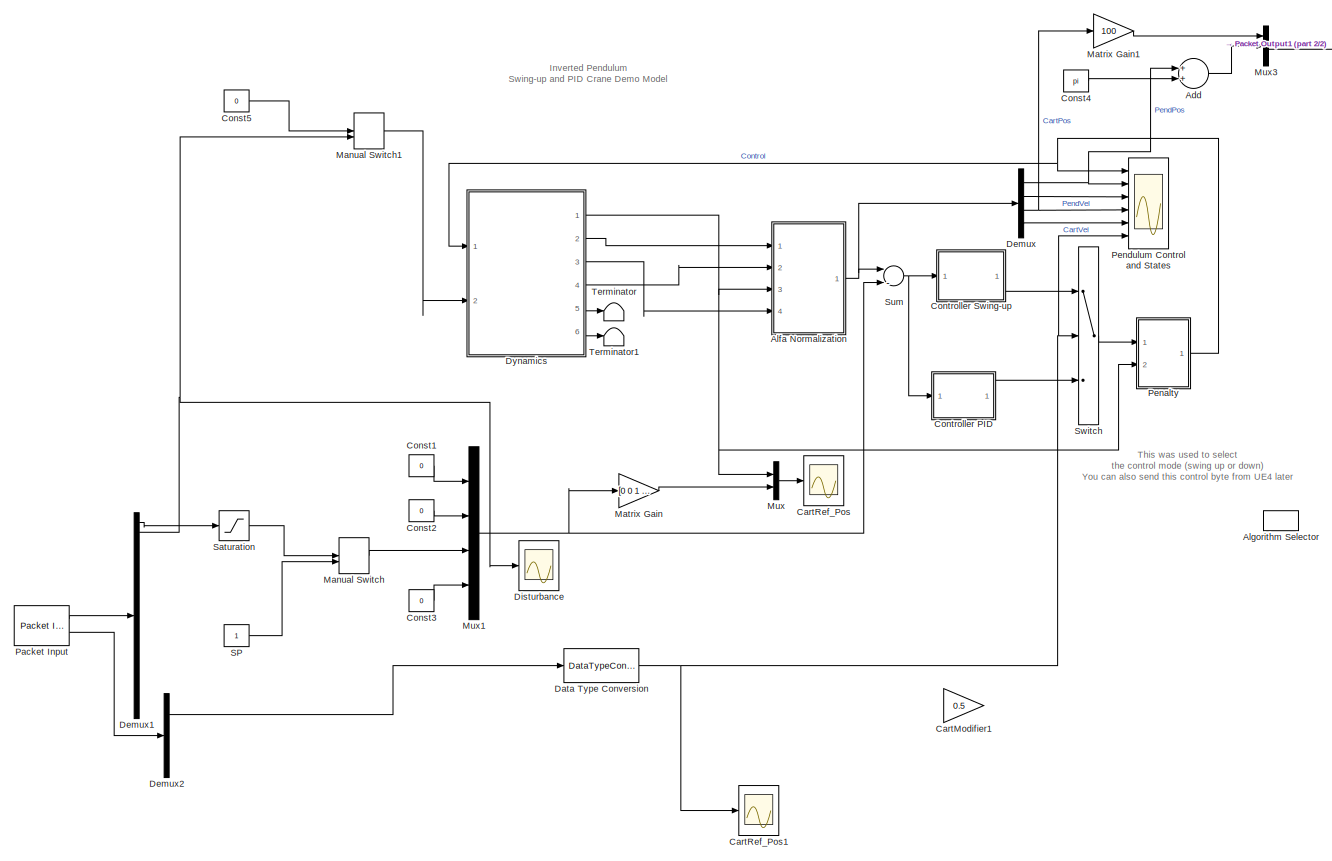
[diagram: root canvas - part 1/2, most of the canvas]
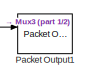
[diagram: root canvas - part 2/2, top right region]
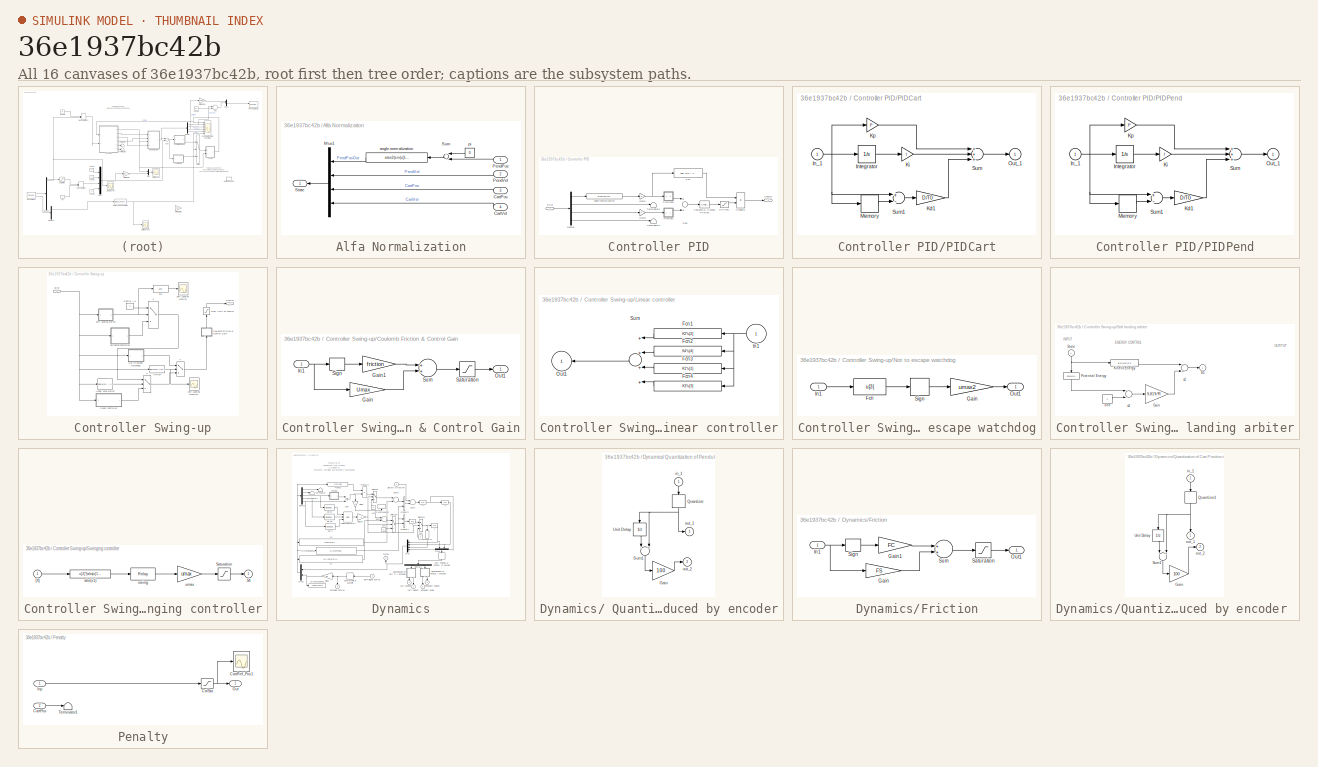
[diagram: thumbnail index - all 16 canvases of the model, root first then tree order]
MODEL slx_36e1937bc42b
KIND model
CONFIG AbsTol = 1e-6
CONFIG EnableMultiTasking = off
CONFIG FixedStep = 0.01
CONFIG MaxStep = auto
CONFIG MinStep = auto
CONFIG RelTol = 1e-3
CONFIG SampleTimeConstraint = Unconstrained
CONFIG Solver = ode5
CONFIG SolverName = ode5
CONFIG StartTime = 0.0
CONFIG StopTime = inf
BLOCK [Sum] Add
  InputSameDT = off
  OutDataTypeStr = Inherit: Inherit via internal rule
  Ports = [2, 1]
  SaturateOnIntegerOverflow = off
BLOCK [SubSystem] Alfa Normalization
  Ports = [4, 1]
  RequestExecContextInheritance = off
BLOCK [Inport] Alfa Normalization/CartPos
  IconDisplay = Port number
  Port = 3
BLOCK [Inport] Alfa Normalization/CartVel
  IconDisplay = Port number
  Port = 4
BLOCK [Mux] Alfa Normalization/Mux1
  Ports = [4, 1]
BLOCK [Inport] Alfa Normalization/PendPos
  IconDisplay = Port number
BLOCK [Inport] Alfa Normalization/PendVel
  IconDisplay = Port number
  Port = 2
BLOCK [Outport] Alfa Normalization/State
  IconDisplay = Port number
  InitialOutput = 0
BLOCK [Sum] Alfa Normalization/Sum
  Ports = [2, 1]
BLOCK [Fcn] Alfa Normalization/angle normalization
  Expr = atan2(sin(u[1]),cos(u[1]))
BLOCK [Constant] Alfa Normalization/pi
  Value = 0
BLOCK [DiscretePulseGenerator] Algorithm Selector
  Period = 30
  Ports = [0, 1]
  PulseType = Time based
  PulseWidth = 70
BLOCK [Gain] CartModifier1
  Gain = 0.5
  Multiplication = Matrix(K*u)
BLOCK [Scope] CartRef_Pos
  ExtModeLoggingTrig = on
  ExtModeUploadOption = log
  Floating = off
  NumInputPorts = 1
  Ports = [1]
  ScopeSpecificationString = Simulink.scopes.TimeScopeBlockCfg('CurrentConfiguration', extmgr.ConfigurationSet(extmgr.Configuration('Core','General UI',true),extmgr.Configuration('Core','Source UI',true),extmgr.Configuration('Sources','WiredSimulink',true,'DataLogging',true,'DataLoggingVariableName','Cart_refpos','DataLoggingSaveFormat','StructureWithTime','DataLoggingMaxPoints','50000','DataLoggingLimitDataPoints',true,'Data...<+1828ch>
BLOCK [Scope] CartRef_Pos1
  Floating = off
  NumInputPorts = 1
  Ports = [1]
  ScopeSpecificationString = Simulink.scopes.TimeScopeBlockCfg('CurrentConfiguration', extmgr.ConfigurationSet(extmgr.Configuration('Core','General UI',true),extmgr.Configuration('Core','Source UI',true),extmgr.Configuration('Sources','WiredSimulink',true,'DataLogging',true,'DataLoggingVariableName','ScopeData155','DataLoggingSaveFormat','StructureWithTime','DataLoggingMaxPoints','50000','DataLoggingLimitDataPoints',true,'Dat...<+1825ch>
BLOCK [Constant] Const1
  Value = 0
BLOCK [Constant] Const2
  Value = 0
BLOCK [Constant] Const3
  Value = 0
BLOCK [Constant] Const4
  Value = pi
BLOCK [Constant] Const5
  Value = 0
BLOCK [SubSystem] Controller PID
  Ports = [1, 1]
  RequestExecContextInheritance = off
BLOCK [Outport] Controller PID/Control
  IconDisplay = Port number
  InitialOutput = 0
BLOCK [Reference] Controller PID/Coulomb & Viscous Friction  REF=simulink/Discontinuities/Coulomb &
Viscous Friction
  Ports = [1, 1]
  SourceBlock = simulink/Discontinuities/Coulomb &\nViscous Friction
  SourceProductBaseCode = SL
  SourceProductName = Simulink
  SourceType = Coulombic and Viscous Friction
BLOCK [Saturate] Controller PID/CtrlSat1
  InputPortMap = u0
  LowerLimit = -Umax
  Ports = [1, 1]
  UpperLimit = Umax
BLOCK [Demux] Controller PID/Demux
  Ports = [1, 4]
BLOCK [Inport] Controller PID/Error
  IconDisplay = Port number
BLOCK [Fcn] Controller PID/Fcn
  Expr = abs( u[1] ) < zone
BLOCK [Gain] Controller PID/Gain1
BLOCK [Gain] Controller PID/Gain3
BLOCK [SubSystem] Controller PID/PIDCart
  Ports = [1, 1]
  RequestExecContextInheritance = off
BLOCK [Inport] Controller PID/PIDCart/In_1
  IconDisplay = Port number
BLOCK [Integrator] Controller PID/PIDCart/Integrator
  LimitOutput = on
  LowerSaturationLimit = -1
  Ports = [1, 1]
  UpperSaturationLimit = 1
BLOCK [Gain] Controller PID/PIDCart/Kd1
  Gain = D/T0
BLOCK [Gain] Controller PID/PIDCart/Ki
  Gain = I
BLOCK [Gain] Controller PID/PIDCart/Kp
  Gain = P
BLOCK [Memory] Controller PID/PIDCart/Memory
BLOCK [Outport] Controller PID/PIDCart/Out_1
  IconDisplay = Port number
  InitialOutput = 0
BLOCK [Sum] Controller PID/PIDCart/Sum
  Inputs = +++
  Ports = [3, 1]
BLOCK [Sum] Controller PID/PIDCart/Sum1
  Inputs = +-
  Ports = [2, 1]
BLOCK [SubSystem] Controller PID/PIDPend
  Ports = [1, 1]
  RequestExecContextInheritance = off
BLOCK [Inport] Controller PID/PIDPend/In_1
  IconDisplay = Port number
BLOCK [Integrator] Controller PID/PIDPend/Integrator
  LimitOutput = on
  LowerSaturationLimit = -1
  Ports = [1, 1]
  UpperSaturationLimit = 1
BLOCK [Gain] Controller PID/PIDPend/Kd1
  Gain = D/T0
BLOCK [Gain] Controller PID/PIDPend/Ki
  Gain = I
BLOCK [Gain] Controller PID/PIDPend/Kp
  Gain = P
BLOCK [Memory] Controller PID/PIDPend/Memory
BLOCK [Outport] Controller PID/PIDPend/Out_1
  IconDisplay = Port number
  InitialOutput = 0
BLOCK [Sum] Controller PID/PIDPend/Sum
  Inputs = +++
  Ports = [3, 1]
BLOCK [Sum] Controller PID/PIDPend/Sum1
  Inputs = +-
  Ports = [2, 1]
BLOCK [Product] Controller PID/Product1
  Ports = [2, 1]
BLOCK [Sum] Controller PID/Sum
  Ports = [2, 1]
BLOCK [Terminator] Controller PID/Terminator1
BLOCK [Terminator] Controller PID/Terminator2
BLOCK [Fcn] Controller PID/angle normalization
  Expr = atan2(sin(u+pi),cos(u+pi))
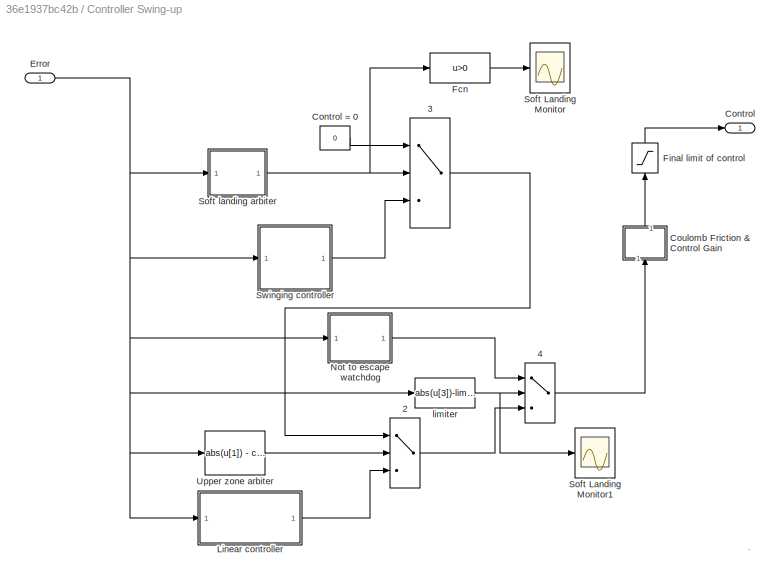
BLOCK [SubSystem] Controller Swing-up
  Ports = [1, 1]
  RequestExecContextInheritance = off
BLOCK [Switch] Controller Swing-up/2
BLOCK [Switch] Controller Swing-up/3
BLOCK [Switch] Controller Swing-up/4
BLOCK [Outport] Controller Swing-up/Control
  IconDisplay = Port number
  InitialOutput = 0
BLOCK [Constant] Controller Swing-up/Control = 0
  Value = 0
BLOCK [SubSystem] Controller Swing-up/Coulomb Friction & Control Gain
  Ports = [1, 1]
  RequestExecContextInheritance = off
BLOCK [Gain] Controller Swing-up/Coulomb Friction & Control Gain/Gain
  Gain = Umax
BLOCK [Gain] Controller Swing-up/Coulomb Friction & Control Gain/Gain1
  Gain = friction
BLOCK [Inport] Controller Swing-up/Coulomb Friction & Control Gain/In1
  IconDisplay = Port number
BLOCK [Outport] Controller Swing-up/Coulomb Friction & Control Gain/Out1
  IconDisplay = Port number
  InitialOutput = 0
BLOCK [Saturate] Controller Swing-up/Coulomb Friction & Control Gain/Saturation
  InputPortMap = u0
  LowerLimit = -1
  Ports = [1, 1]
  UpperLimit = 1
BLOCK [Signum] Controller Swing-up/Coulomb Friction & Control Gain/Sign
BLOCK [Sum] Controller Swing-up/Coulomb Friction & Control Gain/Sum
  Ports = [2, 1]
BLOCK [Inport] Controller Swing-up/Error
  IconDisplay = Port number
BLOCK [Fcn] Controller Swing-up/Fcn
  Expr = u>0
BLOCK [Saturate] Controller Swing-up/Final limit of control
  InputPortMap = u0
  LowerLimit = -0.2
  Ports = [1, 1]
  UpperLimit = 0.2
BLOCK [SubSystem] Controller Swing-up/Linear controller
  Ports = [1, 1]
  RequestExecContextInheritance = off
BLOCK [Fcn] Controller Swing-up/Linear controller/Fcn1
  Expr = K2*u[2]
BLOCK [Fcn] Controller Swing-up/Linear controller/Fcn2
  Expr = K4*u[4]
BLOCK [Fcn] Controller Swing-up/Linear controller/Fcn3
  Expr = K1*u[1]
BLOCK [Fcn] Controller Swing-up/Linear controller/Fcn4
  Expr = K3*u[3]
BLOCK [Inport] Controller Swing-up/Linear controller/In1
  IconDisplay = Port number
BLOCK [Outport] Controller Swing-up/Linear controller/Out1
  IconDisplay = Port number
  InitialOutput = 0
BLOCK [Sum] Controller Swing-up/Linear controller/Sum
  Inputs = ++++
  Ports = [4, 1]
BLOCK [SubSystem] Controller Swing-up/Not to escape watchdog
  Ports = [1, 1]
  RequestExecContextInheritance = off
BLOCK [Fcn] Controller Swing-up/Not to escape watchdog/Fcn
  Expr = u[3]
BLOCK [Gain] Controller Swing-up/Not to escape watchdog/Gain
  Gain = umax2
BLOCK [Inport] Controller Swing-up/Not to escape watchdog/In1
  IconDisplay = Port number
BLOCK [Outport] Controller Swing-up/Not to escape watchdog/Out1
  IconDisplay = Port number
  InitialOutput = 0
BLOCK [Signum] Controller Swing-up/Not to escape watchdog/Sign
BLOCK [Scope] Controller Swing-up/Soft Landing Monitor
  ExtModeLoggingTrig = on
  ExtModeUploadOption = log
  Floating = off
  NumInputPorts = 1
  Ports = [1]
  ScopeSpecificationString = C++SS(StrPVP('Location','[521, 73, 1019, 438]'),StrPVP('Open','off'),StrPVP('ZoomMode','xonly'),MxPVP('AxesTitles',53,'struct(''axes1'',''%<SignalLabel>'')'),StrPVP('ShowLegends','off'),StrPVP('TimeRange','60'),StrPVP('YMin','0'),StrPVP('YMax','1'),StrPVP('SaveToWorkspace','on'),StrPVP('DataFormat','StructureWithTime'),StrPVP('MaxDataPoints','50000'),StrPVP('BlockParamSampleTime','0'),StrPVP('Limi...<+82ch>
BLOCK [Scope] Controller Swing-up/Soft Landing Monitor1
  ExtModeLoggingTrig = on
  ExtModeUploadOption = log
  Floating = off
  NumInputPorts = 1
  Ports = [1]
  ScopeSpecificationString = C++SS(StrPVP('Location','[675, 376, 1034, 652]'),StrPVP('Open','off'),StrPVP('ZoomMode','xonly'),MxPVP('AxesTitles',53,'struct(''axes1'',''%<SignalLabel>'')'),StrPVP('ShowLegends','off'),StrPVP('TimeRange','60'),StrPVP('YMin','0'),StrPVP('YMax','1'),StrPVP('SaveToWorkspace','on'),StrPVP('SaveName','ScopeData1'),StrPVP('DataFormat','StructureWithTime'),StrPVP('MaxDataPoints','50000'),StrPVP('BlockP...<+115ch>
BLOCK [SubSystem] Controller Swing-up/Soft landing arbiter
  Ports = [1, 1]
  RequestExecContextInheritance = off
  ShowPortLabels = none
BLOCK [Gain] Controller Swing-up/Soft landing arbiter/Gain
  Gain = 9.81*k*R
BLOCK [Fcn] Controller Swing-up/Soft landing arbiter/Kinetic Energy
  Expr = u[2]*u[2]*0.5
BLOCK [Fcn] Controller Swing-up/Soft landing arbiter/Potential Energy
  Expr = cos(u[1])
BLOCK [Outport] Controller Swing-up/Soft landing arbiter/S5
  IconDisplay = Port number
  InitialOutput = 0
BLOCK [Inport] Controller Swing-up/Soft landing arbiter/State
  IconDisplay = Port number
BLOCK [Constant] Controller Swing-up/Soft landing arbiter/one 
BLOCK [Sum] Controller Swing-up/Soft landing arbiter/s2
  Ports = [2, 1]
BLOCK [Sum] Controller Swing-up/Soft landing arbiter/s3
  Inputs = +-
  Ports = [2, 1]
BLOCK [SubSystem] Controller Swing-up/Swinging controller
  Ports = [1, 1]
  RequestExecContextInheritance = off
  ShowPortLabels = none
BLOCK [Outport] Controller Swing-up/Swinging controller/S4
  IconDisplay = Port number
  InitialOutput = 0
BLOCK [Saturate] Controller Swing-up/Swinging controller/Saturation
  InputPortMap = u0
  LowerLimit = -umax
  Ports = [1, 1]
  UpperLimit = umax
BLOCK [Inport] Controller Swing-up/Swinging controller/[X]
  IconDisplay = Port number
BLOCK [Fcn] Controller Swing-up/Swinging controller/abs(x1)
  Expr = u[2]*(abs(u[1])-pi/2)
BLOCK [Relay] Controller Swing-up/Swinging controller/swing
  OffOutputValue = -1
BLOCK [Gain] Controller Swing-up/Swinging controller/umax
  Gain = umax
BLOCK [Fcn] Controller Swing-up/Upper zone arbiter
  Expr = abs(u[1]) - cone
BLOCK [Fcn] Controller Swing-up/limiter
  Expr = abs(u[3])-limit
BLOCK [DataTypeConversion] Data Type Conversion
  OutDataTypeStr = double
  RndMeth = Floor
  SaturateOnIntegerOverflow = off
BLOCK [Demux] Demux
  Ports = [1, 4]
BLOCK [Demux] Demux1
  DisplayOption = bar
  Outputs = 20
  Ports = [1, 20]
BLOCK [Demux] Demux2
  DisplayOption = bar
  Outputs = 3
  Ports = [1, 3]
BLOCK [Scope] Disturbance
  Floating = off
  NumInputPorts = 1
  Ports = [1]
  ScopeSpecificationString = Simulink.scopes.TimeScopeBlockCfg('CurrentConfiguration', extmgr.ConfigurationSet(extmgr.Configuration('Core','General UI',true),extmgr.Configuration('Core','Source UI',true),extmgr.Configuration('Sources','WiredSimulink',true,'DataLogging',true,'DataLoggingVariableName','ScopeData11','DataLoggingSaveFormat','StructureWithTime','DataLoggingMaxPoints','50000','DataLoggingLimitDataPoints',true,'Data...<+1824ch>
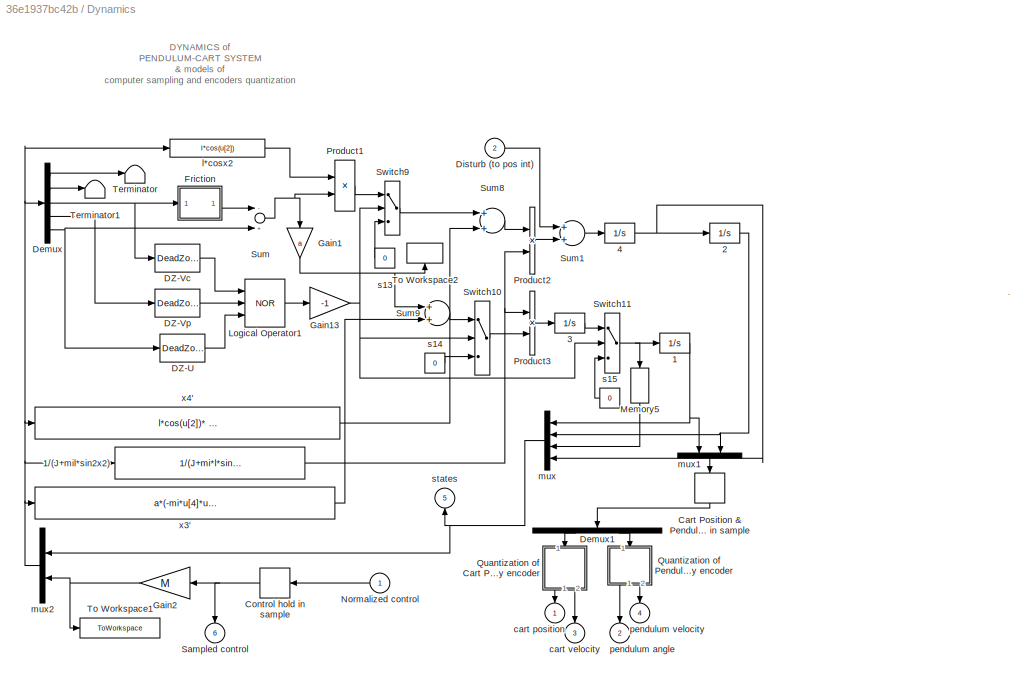
BLOCK [SubSystem] Dynamics
  Ports = [2, 6]
  RequestExecContextInheritance = off
  ShowPortLabels = none
BLOCK [SubSystem] Dynamics/ Quantization of Pendulum Angle introduced by encoder
  Ports = [1, 2]
  RequestExecContextInheritance = off
  ShowPortLabels = none
BLOCK [Gain] Dynamics/ Quantization of Pendulum Angle introduced by encoder/Gain
  Gain = 100
BLOCK [Quantizer] Dynamics/ Quantization of Pendulum Angle introduced by encoder/Quantizer
  QuantizationInterval = 0.001534
BLOCK [Sum] Dynamics/ Quantization of Pendulum Angle introduced by encoder/Sum1
  Inputs = -+
  Ports = [2, 1]
BLOCK [UnitDelay] Dynamics/ Quantization of Pendulum Angle introduced by encoder/Unit Delay
  InitialCondition = x_ini(2)
  SampleTime = 0.01
BLOCK [Inport] Dynamics/ Quantization of Pendulum Angle introduced by encoder/in_1
  IconDisplay = Port number
BLOCK [Outport] Dynamics/ Quantization of Pendulum Angle introduced by encoder/out_1
  IconDisplay = Port number
  InitialOutput = 0
BLOCK [Outport] Dynamics/ Quantization of Pendulum Angle introduced by encoder/out_2
  IconDisplay = Port number
  InitialOutput = 0
  Port = 2
BLOCK [Integrator] Dynamics/1
  InitialCondition = x_ini(1)
  LimitOutput = on
  LowerSaturationLimit = 0
  Ports = [1, 1]
  UpperSaturationLimit = 1.9
BLOCK [Fcn] Dynamics/1//(J+mil*sin2x2)
  Expr = 1/(J+mi*l*sin(u[2])*sin(u[2]))
BLOCK [Integrator] Dynamics/2
  InitialCondition = x_ini(2)
  Ports = [1, 1]
BLOCK [Integrator] Dynamics/3
  InitialCondition = x_ini(3)
  Ports = [1, 1]
BLOCK [Integrator] Dynamics/4
  InitialCondition = x_ini(4)
  Ports = [1, 1]
BLOCK [ZeroOrderHold] Dynamics/Cart Position & Pendulum Angle hold in sample
  SampleTime = 0.01
BLOCK [ZeroOrderHold] Dynamics/Control hold in sample
  SampleTime = 0.01
BLOCK [DeadZone] Dynamics/DZ-U
  LowerValue = -DZu
  UpperValue = DZu
BLOCK [DeadZone] Dynamics/DZ-Vc
  LowerValue = -DZcv
  UpperValue = DZcv
BLOCK [DeadZone] Dynamics/DZ-Vp
  LowerValue = -DZcp
  UpperValue = DZcp
BLOCK [Demux] Dynamics/Demux
  Outputs = 5
  Ports = [1, 5]
BLOCK [Demux] Dynamics/Demux1
  Outputs = 2
  Ports = [1, 2]
BLOCK [Inport] Dynamics/Disturb (to pos int)
  IconDisplay = Port number
  Port = 2
BLOCK [SubSystem] Dynamics/Friction
  Ports = [1, 1]
  RequestExecContextInheritance = off
BLOCK [Gain] Dynamics/Friction/Gain
  Gain = FS
BLOCK [Gain] Dynamics/Friction/Gain1
  Gain = FC
BLOCK [Inport] Dynamics/Friction/In1
  IconDisplay = Port number
BLOCK [Outport] Dynamics/Friction/Out1
  IconDisplay = Port number
  InitialOutput = 0
BLOCK [Saturate] Dynamics/Friction/Saturation
  InputPortMap = u0
  LowerLimit = -1
  Ports = [1, 1]
  UpperLimit = 1
BLOCK [Signum] Dynamics/Friction/Sign
BLOCK [Sum] Dynamics/Friction/Sum
  Ports = [2, 1]
BLOCK [Gain] Dynamics/Gain1
  Gain = a
BLOCK [Gain] Dynamics/Gain13
  Gain = -1
BLOCK [Gain] Dynamics/Gain2
  Gain = M
BLOCK [Logic] Dynamics/Logical Operator1
  Inputs = 3
  Operator = NOR
  Ports = [3, 1]
BLOCK [Memory] Dynamics/Memory5
BLOCK [Inport] Dynamics/Normalized control
  IconDisplay = Port number
BLOCK [Product] Dynamics/Product1
  Ports = [2, 1]
BLOCK [Product] Dynamics/Product2
  Ports = [2, 1]
BLOCK [Product] Dynamics/Product3
  Ports = [2, 1]
BLOCK [SubSystem] Dynamics/Quantization of Cart Position introduced by encoder 
  Ports = [1, 2]
  RequestExecContextInheritance = off
  ShowPortLabels = none
BLOCK [Gain] Dynamics/Quantization of Cart Position introduced by encoder /Gain
  Gain = 100
BLOCK [Quantizer] Dynamics/Quantization of Cart Position introduced by encoder /Quantizer1
  QuantizationInterval = 5.7053e-005
BLOCK [Sum] Dynamics/Quantization of Cart Position introduced by encoder /Sum1
  Inputs = -+
  Ports = [2, 1]
BLOCK [UnitDelay] Dynamics/Quantization of Cart Position introduced by encoder /Unit Delay
  InitialCondition = x_ini(1)
  SampleTime = 0.01
BLOCK [Inport] Dynamics/Quantization of Cart Position introduced by encoder /in_1
  IconDisplay = Port number
BLOCK [Outport] Dynamics/Quantization of Cart Position introduced by encoder /out_1
  IconDisplay = Port number
  InitialOutput = 0
BLOCK [Outport] Dynamics/Quantization of Cart Position introduced by encoder /out_2
  IconDisplay = Port number
  InitialOutput = 0
  Port = 2
BLOCK [Outport] Dynamics/Sampled control
  IconDisplay = Port number
  InitialOutput = 0
  Port = 6
BLOCK [Sum] Dynamics/Sum
  Inputs = -+
  Ports = [2, 1]
BLOCK [Sum] Dynamics/Sum1
  Ports = [2, 1]
BLOCK [Sum] Dynamics/Sum8
  Ports = [2, 1]
BLOCK [Sum] Dynamics/Sum9
  Ports = [2, 1]
BLOCK [Switch] Dynamics/Switch10
BLOCK [Switch] Dynamics/Switch11
BLOCK [Switch] Dynamics/Switch9
BLOCK [Terminator] Dynamics/Terminator
BLOCK [Terminator] Dynamics/Terminator1
BLOCK [ToWorkspace] Dynamics/To Workspace1
  MaxDataPoints = 100000
  Ports = [1]
  VariableName = Control_Newton
BLOCK [ToWorkspace] Dynamics/To Workspace2
  MaxDataPoints = 100000
  Ports = [1]
  VariableName = fric
BLOCK [Outport] Dynamics/cart position
  IconDisplay = Port number
  InitialOutput = 0
BLOCK [Outport] Dynamics/cart velocity
  IconDisplay = Port number
  InitialOutput = 0
  Port = 3
BLOCK [Fcn] Dynamics/l*cosx2
  Expr = l*cos(u[2])
BLOCK [Mux] Dynamics/mux
  Ports = [4, 1]
BLOCK [Mux] Dynamics/mux1
  Inputs = 2
  Ports = [2, 1]
BLOCK [Mux] Dynamics/mux2
  Inputs = [4 1]
  Ports = [2, 1]
BLOCK [Outport] Dynamics/pendulum angle
  IconDisplay = Port number
  InitialOutput = 0
  Port = 2
BLOCK [Outport] Dynamics/pendulum velocity
  IconDisplay = Port number
  InitialOutput = 0
  Port = 4
BLOCK [Constant] Dynamics/s13
  Value = 0
BLOCK [Constant] Dynamics/s14
  Value = 0
BLOCK [Constant] Dynamics/s15
  Value = 0
BLOCK [Outport] Dynamics/states
  IconDisplay = Port number
  InitialOutput = 0
  Port = 5
BLOCK [Fcn] Dynamics/x3'
  Expr = a*(-mi*u[4]*u[4]*sin(u[2]) )+l*cos(u[2])*(mi*g*sin(u[2])-fp*u[4])
BLOCK [Fcn] Dynamics/x4'
  Expr = l*cos(u[2])* (-mi*u[4]*u[4]*sin(u[2])) + mi*g*sin(u[2])-fp*u[4]
BLOCK [ManualSwitch] Manual Switch
BLOCK [ManualSwitch] Manual Switch1
  CurrentSetting = 0
BLOCK [Gain] Matrix Gain
  Gain = [0 0 1 0]
  Multiplication = Matrix(K*u)
BLOCK [Gain] Matrix Gain1
  Gain = 100
BLOCK [Mux] Mux
  DisplayOption = bar
  Inputs = 2
  Ports = [2, 1]
BLOCK [Mux] Mux1
  Ports = [4, 1]
BLOCK [Mux] Mux3
  DisplayOption = bar
  Inputs = 3
  Ports = [3, 1]
BLOCK [Reference] Packet Input  REF=sldrtlib/Packet Input
  AttributesFormatString = UDP Protocol [9977]
  Ports = [0, 2]
  SourceBlock = sldrtlib/Packet Input
  SourceProductBaseCode = WT
  SourceProductName = Simulink Desktop Real-Time
  SourceType = Simulink Desktop Real-Time Packet Input
BLOCK [Reference] Packet Output1  REF=sldrtlib/Packet Output
  AttributesFormatString = UDP Protocol [9999]
  Ports = [2, 1]
  SourceBlock = sldrtlib/Packet Output
  SourceProductBaseCode = WT
  SourceProductName = Simulink Desktop Real-Time
  SourceType = Simulink Desktop Real-Time Packet Output
BLOCK [SubSystem] Penalty
  Ports = [2, 1]
  RequestExecContextInheritance = off
BLOCK [Inport] Penalty/CartPos
  IconDisplay = Port number
  Port = 2
BLOCK [Scope] Penalty/CartRef_Pos1
  ExtModeLoggingTrig = on
  ExtModeUploadOption = log
  Floating = off
  NumInputPorts = 1
  Ports = [1]
  ScopeSpecificationString = C++SS(StrPVP('Location','[335, 46, 703, 304]'),StrPVP('Open','off'),MxPVP('AxesTitles',53,'struct(''axes1'',''%<SignalLabel>'')'),StrPVP('ShowLegends','off'),StrPVP('TimeRange','60'),StrPVP('YMin','-0.1'),StrPVP('YMax','0.45'),StrPVP('SaveToWorkspace','on'),StrPVP('SaveName','Cart_refpos2'),StrPVP('DataFormat','StructureWithTime'),StrPVP('MaxDataPoints','50000'),StrPVP('BlockParamSampleTime','0'),...<+94ch>
BLOCK [Saturate] Penalty/CtrlSat
  InputPortMap = u0
  LowerLimit = -0.2
  Ports = [1, 1]
  UpperLimit = 0.2
BLOCK [Inport] Penalty/Inp
  IconDisplay = Port number
BLOCK [Outport] Penalty/Out
  IconDisplay = Port number
BLOCK [Terminator] Penalty/Terminator1
BLOCK [Scope] Pendulum Control and States
  ExtModeLoggingTrig = on
  ExtModeUploadOption = log
  Floating = off
  NumInputPorts = 6
  Ports = [6]
  ScopeSpecificationString = Simulink.scopes.TimeScopeBlockCfg('CurrentConfiguration', extmgr.ConfigurationSet(extmgr.Configuration('Core','General UI',true),extmgr.Configuration('Core','Source UI',true),extmgr.Configuration('Sources','WiredSimulink',true,'DataLogging',true,'DataLoggingVariableName','States','DataLoggingSaveFormat','StructureWithTime','DataLoggingMaxPoints','50000','DataLoggingLimitDataPoints',true,'DataLoggi...<+5208ch>
BLOCK [Constant] SP 
BLOCK [Saturate] Saturation
  InputPortMap = u0
  LowerLimit = 0
  Ports = [1, 1]
  UpperLimit = 1.8
BLOCK [Sum] Sum
  Inputs = |-+
  Ports = [2, 1]
BLOCK [Switch] Switch
  Threshold = 0.5
BLOCK [Terminator] Terminator
BLOCK [Terminator] Terminator1
ANNOTATION (root): Inverted Pendulum Swing-up and PID Crane Demo Model
ANNOTATION (root): This was used to select the control mode (swing up or down) You can also send this control byte from UE4 later
ANNOTATION Controller Swing-up: .
ANNOTATION Controller Swing-up/Soft landing arbiter: ENERGY CONTROL
ANNOTATION Controller Swing-up/Soft landing arbiter: INPUT
ANNOTATION Controller Swing-up/Soft landing arbiter: OUTPUT
ANNOTATION Dynamics: .
ANNOTATION Dynamics: DYNAMICS of PENDULUM-CART SYSTEM & models of computer sampling and encoders quantization
LINE Add:1 -> Mux3:2
LINE Alfa Normalization/CartPos:1 -> Alfa Normalization/Mux1:3
LINE Alfa Normalization/CartVel:1 -> Alfa Normalization/Mux1:4
LINE Alfa Normalization/Mux1:1 -> Alfa Normalization/State:1
LINE Alfa Normalization/PendPos:1 -> Alfa Normalization/Sum:2
LINE Alfa Normalization/PendVel:1 -> Alfa Normalization/Mux1:2
LINE Alfa Normalization/Sum:1 -> Alfa Normalization/angle normalization:1
LINE Alfa Normalization/angle normalization:1 -> Alfa Normalization/Mux1:1
LINE Alfa Normalization/pi:1 -> Alfa Normalization/Sum:1
NET Alfa Normalization:1 -> Demux:1, Sum:1
LINE Const1:1 -> Mux1:1
LINE Const2:1 -> Mux1:2
LINE Const3:1 -> Mux1:4
LINE Const4:1 -> Add:2
LINE Const5:1 -> Manual Switch1:1
LINE Controller PID/Coulomb & Viscous Friction:1 -> Controller PID/CtrlSat1:1
LINE Controller PID/CtrlSat1:1 -> Controller PID/Product1:2
LINE Controller PID/Demux:1 -> Controller PID/angle normalization:1
LINE Controller PID/Demux:2 -> Controller PID/Terminator2:1
LINE Controller PID/Demux:3 -> Controller PID/Gain3:1
LINE Controller PID/Demux:4 -> Controller PID/Terminator1:1
LINE Controller PID/Error:1 -> Controller PID/Demux:1
LINE Controller PID/Fcn:1 -> Controller PID/Product1:1
NET Controller PID/Gain1:1 -> Controller PID/Fcn:1, Controller PID/PIDPend:1
LINE Controller PID/Gain3:1 -> Controller PID/PIDCart:1
NET Controller PID/PIDCart/In_1:1 -> Controller PID/PIDCart/Integrator:1, Controller PID/PIDCart/Kp:1, Controller PID/PIDCart/Memory:1, Controller PID/PIDCart/Sum1:1
LINE Controller PID/PIDCart/Integrator:1 -> Controller PID/PIDCart/Ki:1
LINE Controller PID/PIDCart/Kd1:1 -> Controller PID/PIDCart/Sum:3
LINE Controller PID/PIDCart/Ki:1 -> Controller PID/PIDCart/Sum:2
LINE Controller PID/PIDCart/Kp:1 -> Controller PID/PIDCart/Sum:1
LINE Controller PID/PIDCart/Memory:1 -> Controller PID/PIDCart/Sum1:2
LINE Controller PID/PIDCart/Sum1:1 -> Controller PID/PIDCart/Kd1:1
LINE Controller PID/PIDCart/Sum:1 -> Controller PID/PIDCart/Out_1:1
LINE Controller PID/PIDCart:1 -> Controller PID/Sum:2
NET Controller PID/PIDPend/In_1:1 -> Controller PID/PIDPend/Integrator:1, Controller PID/PIDPend/Kp:1, Controller PID/PIDPend/Memory:1, Controller PID/PIDPend/Sum1:1
LINE Controller PID/PIDPend/Integrator:1 -> Controller PID/PIDPend/Ki:1
LINE Controller PID/PIDPend/Kd1:1 -> Controller PID/PIDPend/Sum:3
LINE Controller PID/PIDPend/Ki:1 -> Controller PID/PIDPend/Sum:2
LINE Controller PID/PIDPend/Kp:1 -> Controller PID/PIDPend/Sum:1
LINE Controller PID/PIDPend/Memory:1 -> Controller PID/PIDPend/Sum1:2
LINE Controller PID/PIDPend/Sum1:1 -> Controller PID/PIDPend/Kd1:1
LINE Controller PID/PIDPend/Sum:1 -> Controller PID/PIDPend/Out_1:1
LINE Controller PID/PIDPend:1 -> Controller PID/Sum:1
LINE Controller PID/Product1:1 -> Controller PID/Control:1
LINE Controller PID/Sum:1 -> Controller PID/Coulomb & Viscous Friction:1
LINE Controller PID/angle normalization:1 -> Controller PID/Gain1:1
LINE Controller PID:1 -> Switch:3
LINE Controller Swing-up/2:1 -> Controller Swing-up/4:3
LINE Controller Swing-up/3:1 -> Controller Swing-up/2:1
LINE Controller Swing-up/4:1 -> Controller Swing-up/Coulomb Friction & Control Gain:1
LINE Controller Swing-up/Control = 0:1 -> Controller Swing-up/3:1
LINE Controller Swing-up/Coulomb Friction & Control Gain/Gain1:1 -> Controller Swing-up/Coulomb Friction & Control Gain/Sum:1
LINE Controller Swing-up/Coulomb Friction & Control Gain/Gain:1 -> Controller Swing-up/Coulomb Friction & Control Gain/Sum:2
NET Controller Swing-up/Coulomb Friction & Control Gain/In1:1 -> Controller Swing-up/Coulomb Friction & Control Gain/Gain:1, Controller Swing-up/Coulomb Friction & Control Gain/Sign:1
LINE Controller Swing-up/Coulomb Friction & Control Gain/Saturation:1 -> Controller Swing-up/Coulomb Friction & Control Gain/Out1:1
LINE Controller Swing-up/Coulomb Friction & Control Gain/Sign:1 -> Controller Swing-up/Coulomb Friction & Control Gain/Gain1:1
LINE Controller Swing-up/Coulomb Friction & Control Gain/Sum:1 -> Controller Swing-up/Coulomb Friction & Control Gain/Saturation:1
LINE Controller Swing-up/Coulomb Friction & Control Gain:1 -> Controller Swing-up/Final limit of control:1
NET Controller Swing-up/Error:1 -> Controller Swing-up/Linear controller:1, Controller Swing-up/Not to escape watchdog:1, Controller Swing-up/Soft landing arbiter:1, Controller Swing-up/Swinging controller:1, Controller Swing-up/Upper zone arbiter:1, Controller Swing-up/limiter:1
LINE Controller Swing-up/Fcn:1 -> Controller Swing-up/Soft Landing Monitor:1
LINE Controller Swing-up/Final limit of control:1 -> Controller Swing-up/Control:1
LINE Controller Swing-up/Linear controller/Fcn1:1 -> Controller Swing-up/Linear controller/Sum:1
LINE Controller Swing-up/Linear controller/Fcn2:1 -> Controller Swing-up/Linear controller/Sum:2
LINE Controller Swing-up/Linear controller/Fcn3:1 -> Controller Swing-up/Linear controller/Sum:3
LINE Controller Swing-up/Linear controller/Fcn4:1 -> Controller Swing-up/Linear controller/Sum:4
NET Controller Swing-up/Linear controller/In1:1 -> Controller Swing-up/Linear controller/Fcn1:1, Controller Swing-up/Linear controller/Fcn2:1, Controller Swing-up/Linear controller/Fcn3:1, Controller Swing-up/Linear controller/Fcn4:1
LINE Controller Swing-up/Linear controller/Sum:1 -> Controller Swing-up/Linear controller/Out1:1
LINE Controller Swing-up/Linear controller:1 -> Controller Swing-up/2:3
LINE Controller Swing-up/Not to escape watchdog/Fcn:1 -> Controller Swing-up/Not to escape watchdog/Sign:1
LINE Controller Swing-up/Not to escape watchdog/Gain:1 -> Controller Swing-up/Not to escape watchdog/Out1:1
LINE Controller Swing-up/Not to escape watchdog/In1:1 -> Controller Swing-up/Not to escape watchdog/Fcn:1
LINE Controller Swing-up/Not to escape watchdog/Sign:1 -> Controller Swing-up/Not to escape watchdog/Gain:1
LINE Controller Swing-up/Not to escape watchdog:1 -> Controller Swing-up/4:1
LINE Controller Swing-up/Soft landing arbiter/Gain:1 -> Controller Swing-up/Soft landing arbiter/s2:2
LINE Controller Swing-up/Soft landing arbiter/Kinetic Energy:1 -> Controller Swing-up/Soft landing arbiter/s2:1
LINE Controller Swing-up/Soft landing arbiter/Potential Energy:1 -> Controller Swing-up/Soft landing arbiter/s3:1
NET Controller Swing-up/Soft landing arbiter/State:1 -> Controller Swing-up/Soft landing arbiter/Kinetic Energy:1, Controller Swing-up/Soft landing arbiter/Potential Energy:1
LINE Controller Swing-up/Soft landing arbiter/one :1 -> Controller Swing-up/Soft landing arbiter/s3:2
LINE Controller Swing-up/Soft landing arbiter/s2:1 -> Controller Swing-up/Soft landing arbiter/S5:1
LINE Controller Swing-up/Soft landing arbiter/s3:1 -> Controller Swing-up/Soft landing arbiter/Gain:1
NET Controller Swing-up/Soft landing arbiter:1 -> Controller Swing-up/3:2, Controller Swing-up/Fcn:1
LINE Controller Swing-up/Swinging controller/Saturation:1 -> Controller Swing-up/Swinging controller/S4:1
LINE Controller Swing-up/Swinging controller/[X]:1 -> Controller Swing-up/Swinging controller/abs(x1):1
LINE Controller Swing-up/Swinging controller/abs(x1):1 -> Controller Swing-up/Swinging controller/swing:1
LINE Controller Swing-up/Swinging controller/swing:1 -> Controller Swing-up/Swinging controller/umax:1
LINE Controller Swing-up/Swinging controller/umax:1 -> Controller Swing-up/Swinging controller/Saturation:1
LINE Controller Swing-up/Swinging controller:1 -> Controller Swing-up/3:3
LINE Controller Swing-up/Upper zone arbiter:1 -> Controller Swing-up/2:2
NET Controller Swing-up/limiter:1 -> Controller Swing-up/4:2, Controller Swing-up/Soft Landing Monitor1:1
LINE Controller Swing-up:1 -> Switch:1
NET Data Type Conversion:1 -> CartRef_Pos1:1, Pendulum Control and States:6, Switch:2
LINE Demux1:1 -> Saturation:1
NET Demux1:2 -> Disturbance:1, Manual Switch1:2
LINE Demux2:1 -> Data Type Conversion:1
NET Demux:1 -> Add:1, Pendulum Control and States:2
LINE Demux:2 -> Pendulum Control and States:3
NET Demux:3 -> Matrix Gain1:1, Pendulum Control and States:4
LINE Demux:4 -> Pendulum Control and States:5
LINE Dynamics/ Quantization of Pendulum Angle introduced by encoder/Gain:1 -> Dynamics/ Quantization of Pendulum Angle introduced by encoder/out_2:1
NET Dynamics/ Quantization of Pendulum Angle introduced by encoder/Quantizer:1 -> Dynamics/ Quantization of Pendulum Angle introduced by encoder/Sum1:2, Dynamics/ Quantization of Pendulum Angle introduced by encoder/Unit Delay:1, Dynamics/ Quantization of Pendulum Angle introduced by encoder/out_1:1
LINE Dynamics/ Quantization of Pendulum Angle introduced by encoder/Sum1:1 -> Dynamics/ Quantization of Pendulum Angle introduced by encoder/Gain:1
LINE Dynamics/ Quantization of Pendulum Angle introduced by encoder/Unit Delay:1 -> Dynamics/ Quantization of Pendulum Angle introduced by encoder/Sum1:1
LINE Dynamics/ Quantization of Pendulum Angle introduced by encoder/in_1:1 -> Dynamics/ Quantization of Pendulum Angle introduced by encoder/Quantizer:1
LINE Dynamics/ Quantization of Pendulum Angle introduced by encoder:1 -> Dynamics/pendulum angle:1
LINE Dynamics/ Quantization of Pendulum Angle introduced by encoder:2 -> Dynamics/pendulum velocity:1
NET Dynamics/1//(J+mil*sin2x2):1 -> Dynamics/Product2:2, Dynamics/Product3:1
NET Dynamics/1:1 -> Dynamics/mux1:1, Dynamics/mux:1
NET Dynamics/2:1 -> Dynamics/mux1:2, Dynamics/mux:2
LINE Dynamics/3:1 -> Dynamics/Switch11:1
NET Dynamics/4:1 -> Dynamics/2:1, Dynamics/mux:4
LINE Dynamics/Cart Position & Pendulum Angle hold in sample:1 -> Dynamics/Demux1:1
NET Dynamics/Control hold in sample:1 -> Dynamics/Gain2:1, Dynamics/Sampled control:1
LINE Dynamics/DZ-U:1 -> Dynamics/Logical Operator1:3
LINE Dynamics/DZ-Vc:1 -> Dynamics/Logical Operator1:1
LINE Dynamics/DZ-Vp:1 -> Dynamics/Logical Operator1:2
LINE Dynamics/Demux1:1 -> Dynamics/Quantization of Cart Position introduced by encoder :1
LINE Dynamics/Demux1:2 -> Dynamics/ Quantization of Pendulum Angle introduced by encoder:1
LINE Dynamics/Demux:1 -> Dynamics/Terminator:1
LINE Dynamics/Demux:2 -> Dynamics/Terminator1:1
NET Dynamics/Demux:3 -> Dynamics/DZ-Vc:1, Dynamics/Friction:1
LINE Dynamics/Demux:4 -> Dynamics/DZ-Vp:1
NET Dynamics/Demux:5 -> Dynamics/DZ-U:1, Dynamics/Sum:2
LINE Dynamics/Disturb (to pos int):1 -> Dynamics/Sum1:1
LINE Dynamics/Friction/Gain1:1 -> Dynamics/Friction/Sum:1
LINE Dynamics/Friction/Gain:1 -> Dynamics/Friction/Sum:2
NET Dynamics/Friction/In1:1 -> Dynamics/Friction/Gain:1, Dynamics/Friction/Sign:1
LINE Dynamics/Friction/Saturation:1 -> Dynamics/Friction/Out1:1
LINE Dynamics/Friction/Sign:1 -> Dynamics/Friction/Gain1:1
LINE Dynamics/Friction/Sum:1 -> Dynamics/Friction/Saturation:1
LINE Dynamics/Friction:1 -> Dynamics/Sum:1
NET Dynamics/Gain13:1 -> Dynamics/Switch10:2, Dynamics/Switch11:2, Dynamics/Switch9:2
NET Dynamics/Gain1:1 -> Dynamics/Sum9:1, Dynamics/To Workspace2:1
NET Dynamics/Gain2:1 -> Dynamics/To Workspace1:1, Dynamics/mux2:2
LINE Dynamics/Logical Operator1:1 -> Dynamics/Gain13:1
LINE Dynamics/Memory5:1 -> Dynamics/mux:3
LINE Dynamics/Normalized control:1 -> Dynamics/Control hold in sample:1
LINE Dynamics/Product1:1 -> Dynamics/Switch9:1
LINE Dynamics/Product2:1 -> Dynamics/Sum1:2
LINE Dynamics/Product3:1 -> Dynamics/3:1
LINE Dynamics/Quantization of Cart Position introduced by encoder /Gain:1 -> Dynamics/Quantization of Cart Position introduced by encoder /out_2:1
NET Dynamics/Quantization of Cart Position introduced by encoder /Quantizer1:1 -> Dynamics/Quantization of Cart Position introduced by encoder /Sum1:2, Dynamics/Quantization of Cart Position introduced by encoder /Unit Delay:1, Dynamics/Quantization of Cart Position introduced by encoder /out_1:1
LINE Dynamics/Quantization of Cart Position introduced by encoder /Sum1:1 -> Dynamics/Quantization of Cart Position introduced by encoder /Gain:1
LINE Dynamics/Quantization of Cart Position introduced by encoder /Unit Delay:1 -> Dynamics/Quantization of Cart Position introduced by encoder /Sum1:1
LINE Dynamics/Quantization of Cart Position introduced by encoder /in_1:1 -> Dynamics/Quantization of Cart Position introduced by encoder /Quantizer1:1
LINE Dynamics/Quantization of Cart Position introduced by encoder :1 -> Dynamics/cart position:1
LINE Dynamics/Quantization of Cart Position introduced by encoder :2 -> Dynamics/cart velocity:1
LINE Dynamics/Sum1:1 -> Dynamics/4:1
LINE Dynamics/Sum8:1 -> Dynamics/Product2:1
LINE Dynamics/Sum9:1 -> Dynamics/Switch10:1
NET Dynamics/Sum:1 -> Dynamics/Gain1:1, Dynamics/Product1:2
LINE Dynamics/Switch10:1 -> Dynamics/Product3:2
NET Dynamics/Switch11:1 -> Dynamics/1:1, Dynamics/Memory5:1
LINE Dynamics/Switch9:1 -> Dynamics/Sum8:1
LINE Dynamics/l*cosx2:1 -> Dynamics/Product1:1
LINE Dynamics/mux1:1 -> Dynamics/Cart Position & Pendulum Angle hold in sample:1
NET Dynamics/mux2:1 -> Dynamics/1//(J+mil*sin2x2):1, Dynamics/Demux:1, Dynamics/l*cosx2:1, Dynamics/x3':1, Dynamics/x4':1
NET Dynamics/mux:1 -> Dynamics/mux2:1, Dynamics/states:1
LINE Dynamics/s13:1 -> Dynamics/Switch9:3
LINE Dynamics/s14:1 -> Dynamics/Switch10:3
LINE Dynamics/s15:1 -> Dynamics/Switch11:3
LINE Dynamics/x3':1 -> Dynamics/Sum9:2
LINE Dynamics/x4':1 -> Dynamics/Sum8:2
NET Dynamics:1 -> Alfa Normalization:3, Mux:1, Penalty:2
LINE Dynamics:2 -> Alfa Normalization:1
LINE Dynamics:3 -> Alfa Normalization:4
LINE Dynamics:4 -> Alfa Normalization:2
LINE Dynamics:5 -> Terminator:1
LINE Dynamics:6 -> Terminator1:1
LINE Manual Switch1:1 -> Dynamics:2
LINE Manual Switch:1 -> Mux1:3
LINE Matrix Gain1:1 -> Mux3:1
LINE Matrix Gain:1 -> Mux:2
NET Mux1:1 -> Matrix Gain:1, Sum:2
LINE Mux3:1 -> Packet Output1:1
LINE Mux:1 -> CartRef_Pos:1
LINE Packet Input:1 -> Demux1:1
LINE Packet Input:2 -> Demux2:1
LINE Penalty/CartPos:1 -> Penalty/Terminator1:1
NET Penalty/CtrlSat:1 -> Penalty/CartRef_Pos1:1, Penalty/Out:1
LINE Penalty/Inp:1 -> Penalty/CtrlSat:1
NET Penalty:1 -> Dynamics:1, Pendulum Control and States:1
LINE SP :1 -> Manual Switch:2
LINE Saturation:1 -> Manual Switch:1
NET Sum:1 -> Controller PID:1, Controller Swing-up:1
LINE Switch:1 -> Penalty:1
note: NET lines group one-source signal fan-out (src -> all destinations, sorted); 1:1 wires keep LINE
